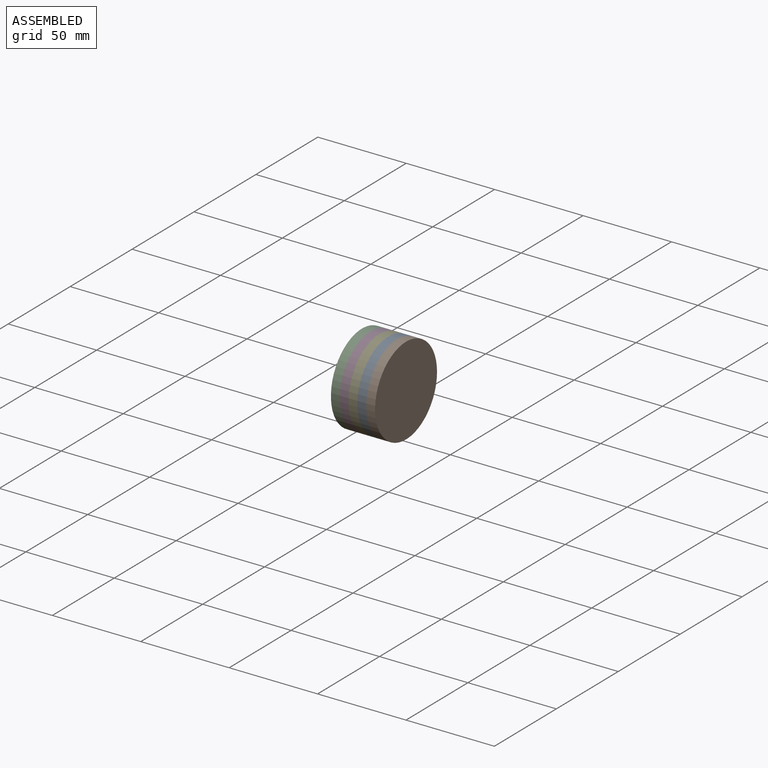
[diagram: assembled view]
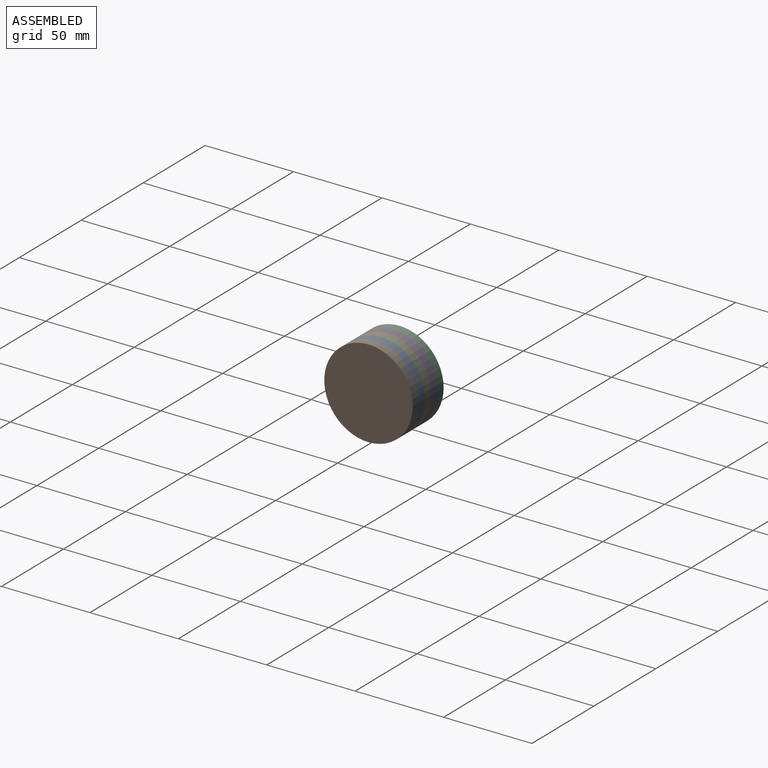
[diagram: assembled view, second angle]
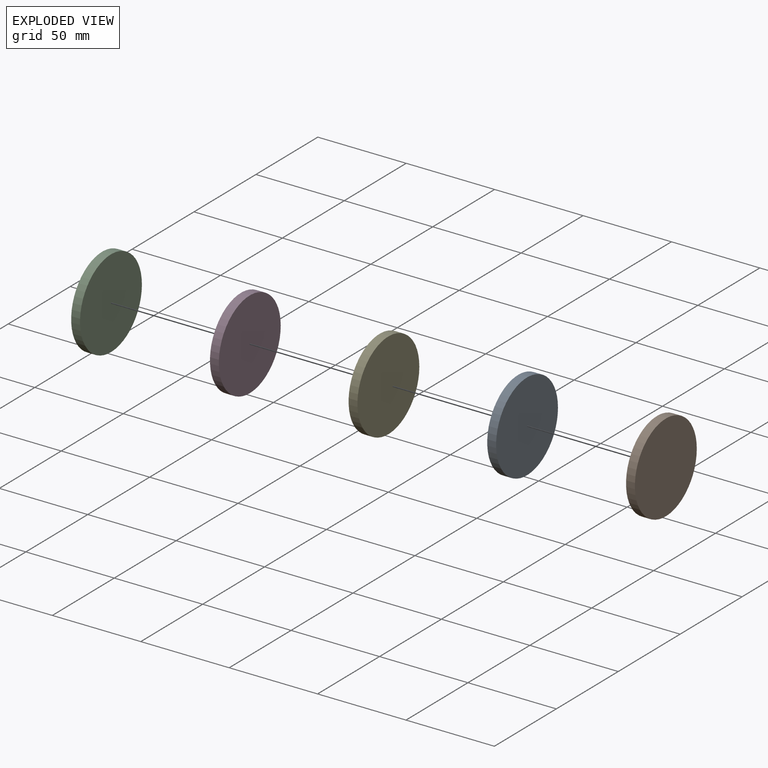
[diagram: exploded view]
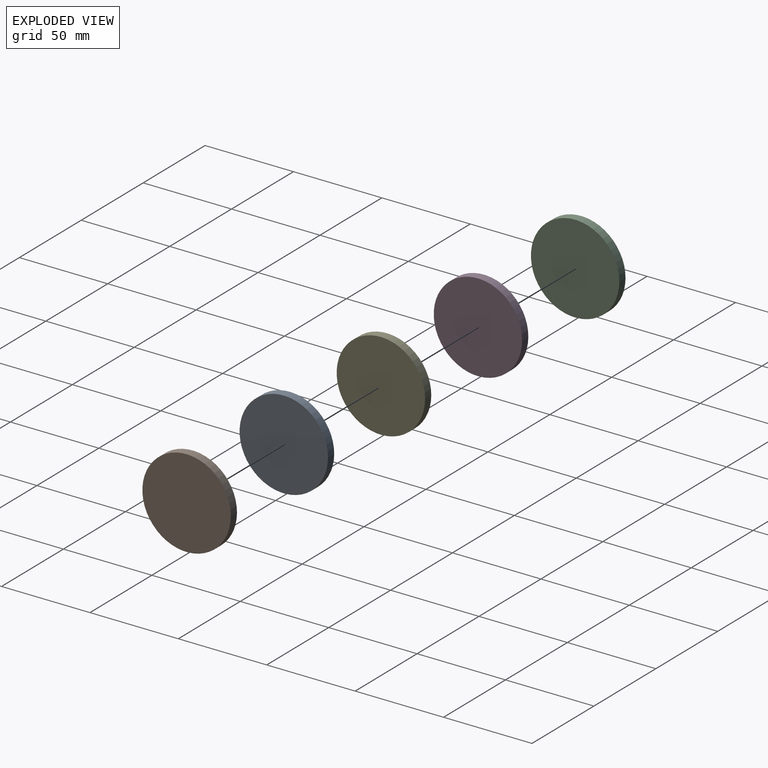
[diagram: exploded view, second angle]
ASSEMBLY  parts=5 mates=4
PART A: 3 faces, bbox 5x50x50 mm
  f0: cylinder r=25mm len=50mm, axis (-1,0,0), area 785.4mm2, adj f1,f2
  f1: plane 50x50mm, normal (1,0,0), area 1963.5mm2, adj f0
  f2: plane 50x50mm, normal (-1,0,0), area 1963.5mm2, adj f0
PART B: same geometry as A
PART C: same geometry as A
PART D: same geometry as A
PART E: same geometry as A
PLACE A t=(15,0,0)mm
PLACE B t=(20,0,0)mm
PLACE C at identity
PLACE D t=(5,0,0)mm
PLACE E t=(10,0,0)mm
MATE fastened E.f0 <-> A.f0  axis (1,0,0) through (15,0,0)mm
MATE fastened E.f0 <-> D.f0  axis (-1,0,0) through (10,0,0)mm
MATE fastened C.f0 <-> D.f0  axis (1,0,0) through (5,0,0)mm
MATE fastened A.f0 <-> B.f0  axis (1,0,0) through (20,0,0)mm
